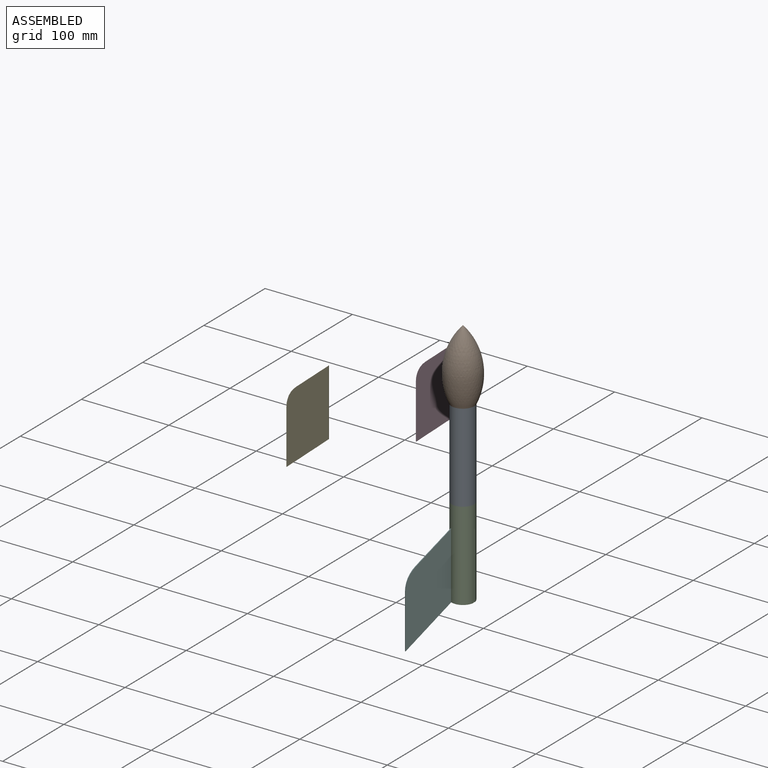
[diagram: assembled view]
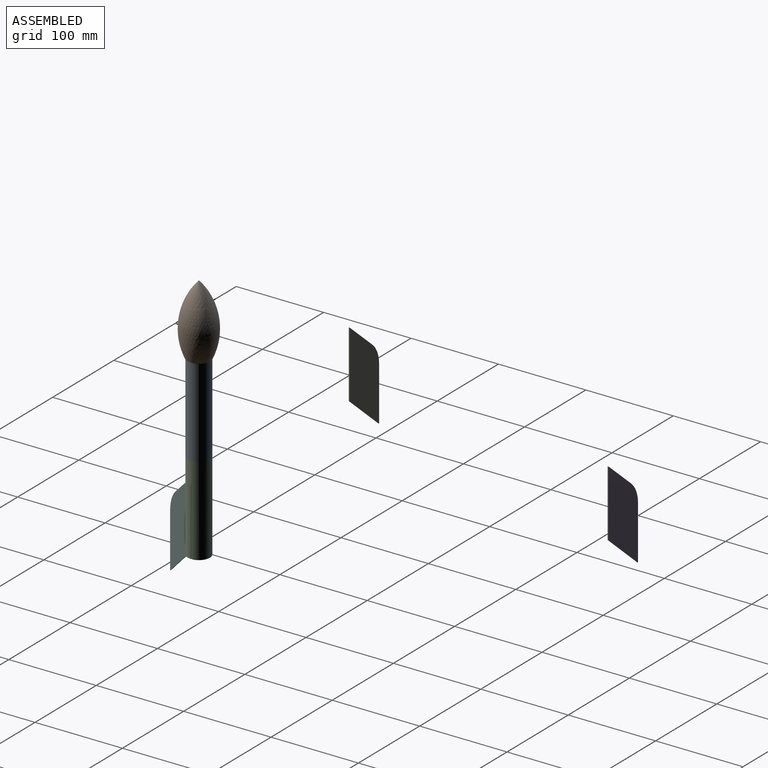
[diagram: assembled view, second angle]
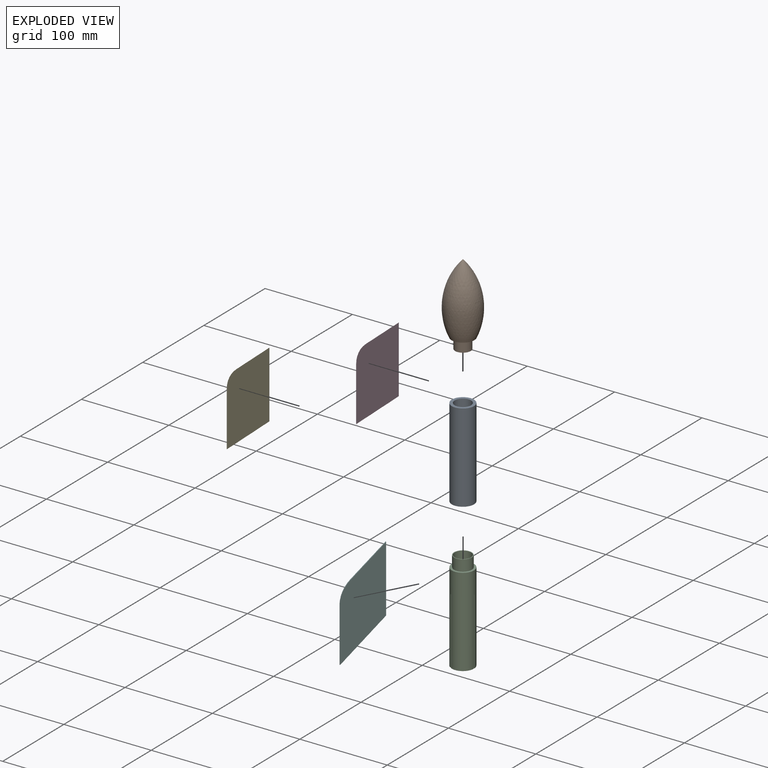
[diagram: exploded view]
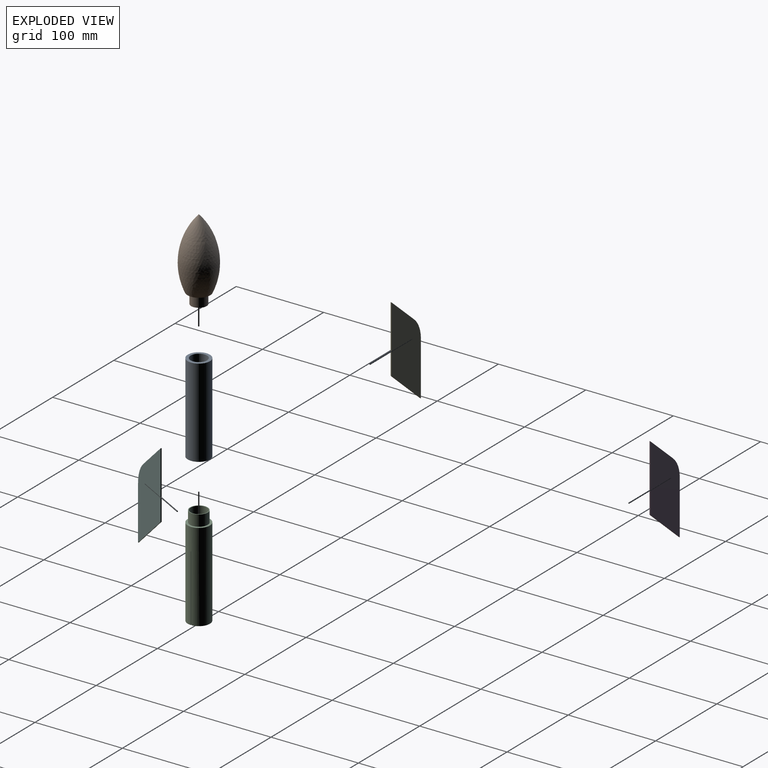
[diagram: exploded view, second angle]
ASSEMBLY  parts=6 mates=3
PART A: 6 faces, bbox 25.4x25.4x101.6 mm
  f0: cylinder r=10.67mm len=21.34mm, axis (0,0,1), area 851.3mm2, adj f2,f5
  f1: cylinder r=12.7mm len=101.6mm, axis (0,0,1), area 8107.3mm2, adj f2,f3
  f2: plane 25.4x25.4mm, normal (0,0,-1), area 149.2mm2, adj f0,f1
  f3: plane 25.4x25.4mm, normal (0,0,1), area 229.2mm2, adj f1,f4
  f4: cylinder r=9.4mm len=88.9mm, axis (0,0,1), area 5249.5mm2, adj f3,f5
  f5: plane 21.34x21.34mm, normal (0,0,-1), area 80.1mm2, adj f0,f4
PART B: 7 faces, bbox 39.7x39.7x92.7 mm
  f0: plane 26.13x26.13mm, normal (0,0,-1), area 288.2mm2, adj f1,f6
  f1: revolved ~80.32x39.71mm, area 8006.9mm2, adj f0
  f2: revolved ~74.01x34.63mm, area 6392.1mm2, adj f3
  f3: plane 22.86x22.86mm, normal (0,0,1), area 283.8mm2, adj f2,f4
  f4: cylinder r=6.35mm len=14.89mm, axis (0,0,-1), area 593.9mm2, adj f3,f5
  f5: plane 17.78x17.78mm, normal (0,0,-1), area 121.6mm2, adj f4,f6
  f6: cylinder r=8.89mm len=17.78mm, axis (0,0,-1), area 689.6mm2, adj f0,f5
PART C: 20 faces, bbox 25.4x25.4x114.3 mm
  f0: cylinder r=12.7mm len=101.6mm, axis (0,0,1), area 7816.9mm2, adj f2,f3,f9,f10,f11,f13,f14,f15
  f1: cylinder r=10.16mm len=50.8mm, axis (0,0,1), area 3242.9mm2, adj f2,f7
  f2: plane 25.4x25.39mm, normal (0,0,-1), area 180mm2, adj f0,f1,f8,f9,f10,f12,f13,f14
  f3: plane 25.4x25.4mm, normal (0,0,1), area 182.4mm2, adj f0,f4
  f4: cylinder r=10.16mm len=20.32mm, axis (0,0,-1), area 810.7mm2, adj f3,f6
  f5: cylinder r=9.4mm len=63.5mm, axis (0,0,-1), area 3749.6mm2, adj f6,f7
  f6: plane 20.32x20.32mm, normal (0,0,1), area 46.8mm2, adj f4,f5
  f7: plane 20.32x20.32mm, normal (0,0,-1), area 46.8mm2, adj f1,f5
  f8: plane 76.2x1.09mm, normal (-0.52,0.86,0), area 96.8mm2, adj f2,f9,f10,f11
  f9: plane 76.2x0.54mm, normal (0.86,0.52,0), area 48.4mm2, adj f0,f2,f8,f11
  f10: plane 76.2x0.54mm, normal (-0.86,-0.52,0), area 48.4mm2, adj f0,f2,f8,f11
  f11: plane 1.42x1.2mm, normal (0,0,-1), area 0.8mm2, adj f0,f8,f9,f10
  f12: plane 76.2x1.27mm, normal (1,0.02,0), area 96.8mm2, adj f2,f13,f14,f15
  f13: plane 76.2x0.64mm, normal (0.02,-1,0), area 48.4mm2, adj f0,f2,f12,f15
  f14: plane 76.2x0.64mm, normal (-0.02,1,0), area 48.4mm2, adj f0,f2,f12,f15
  f15: plane 1.28x0.67mm, normal (0,0,-1), area 0.8mm2, adj f0,f12,f13,f14
  f16: plane 76.2x1.11mm, normal (-0.48,-0.88,0), area 96.8mm2, adj f2,f17,f18,f19
  f17: plane 76.2x0.56mm, normal (-0.88,0.48,0), area 48.4mm2, adj f0,f2,f16,f19
  f18: plane 76.2x0.56mm, normal (0.88,-0.48,0), area 48.4mm2, adj f0,f2,f16,f19
  f19: plane 1.42x1.17mm, normal (0,0,-1), area 0.8mm2, adj f0,f16,f17,f18
PART D: 7 faces, bbox 48.1x1x117.6 mm
  f0: plane 76.2x1.02mm, normal (1,0,0), area 77.4mm2, adj f1,f4,f5,f6
  f1: plane 36.97x31.68mm, normal (-0.65,0,0.76), area 49.5mm2, adj f0,f2,f5,f6
  f2: cylinder r=31.91mm len=24.24mm, axis (0,1,0), area 28mm2, adj f1,f3,f5,f6
  f3: plane 61.72x1.02mm, normal (-1,0,0), area 62.7mm2, adj f2,f4,f5,f6
  f4: plane 48.12x41.44mm, normal (0.65,0,-0.76), area 64.5mm2, adj f0,f3,f5,f6
  f5: plane 117.64x48.12mm, normal (0,-1,0), area 3642.5mm2, adj f0,f1,f2,f3,f4
  f6: plane 117.64x48.12mm, normal (0,1,0), area 3642.5mm2, adj f0,f1,f2,f3,f4
PART E: same geometry as D
PART F: same geometry as D
PLACE A t=(741.85,-193.28,189.83)mm
PLACE B t=(741.85,-193.28,177.48)mm
PLACE C t=(741.85,-193.28,88.23)mm
PLACE D t=(518.21,118.92,-0.62)mm
PLACE E t=(558.01,-149.42,86.48)mm
PLACE F rot(axis=(0,0,1),61.1deg) t=(735.58,-203.58,-13.37)mm
MATE fastened F.f0 <-> C.f16  axis (0.48,0.88,0) through (736.02,-203.82,24.73)mm
MATE fastened A.f4 <-> B.f4  axis (0,0,1) through (741.85,-193.28,189.83)mm
MATE fastened C.f0 <-> A.f1  axis (0,0,1) through (741.85,-193.28,88.23)mm
